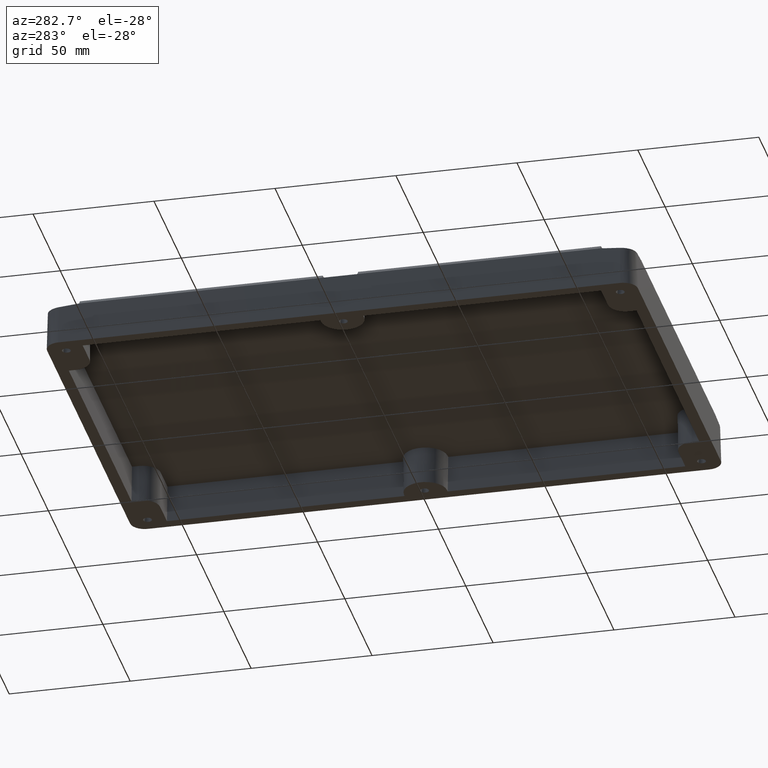
[diagram: clean part render]
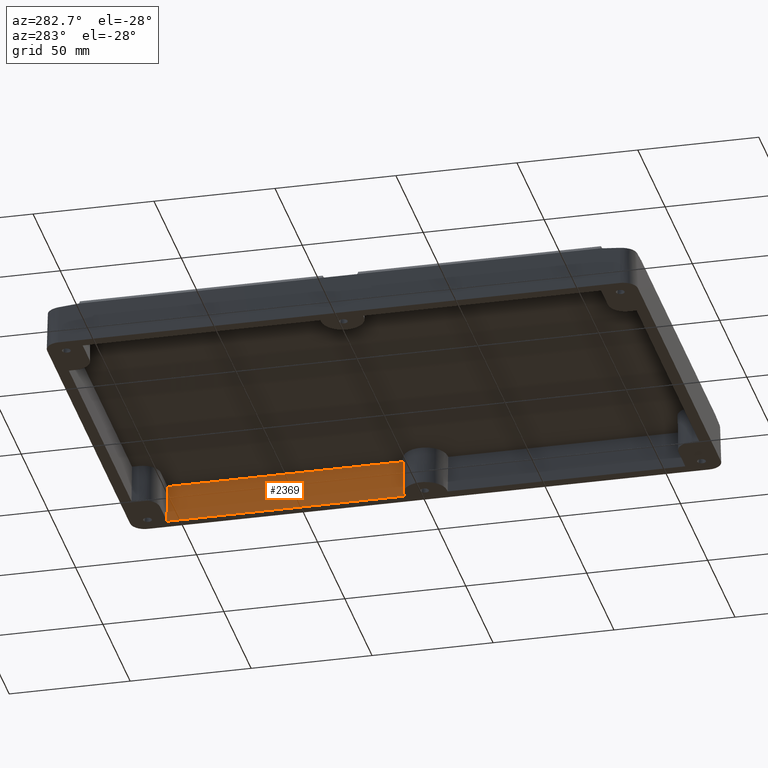
[diagram: same view with one face highlighted and labeled with its STEP entity id]
A machine part, auxiliary view. The second image highlights one B-rep face of the part: STEP entity #2369.
In plain terms, the highlighted planar face has unit normal (0.9998, -0, 0.0175).
Its self-contained STEP definition (entity closure, byte-faithful):
#94 = VERTEX_POINT ( 'NONE', #6098 ) ;
#172 = VERTEX_POINT ( 'NONE', #5270 ) ;
#196 = LINE ( 'NONE', #1811, #5088 ) ;
#343 = VERTEX_POINT ( 'NONE', #866 ) ;
#384 = DIRECTION ( 'NONE',  ( 0.0000000000000000000, 1.000000000000000000, -0.0000000000000000000 ) ) ;
#474 = VECTOR ( 'NONE', #4956, 1000.000000000000200 ) ;
#634 = VECTOR ( 'NONE', #815, 1000.000000000000200 ) ;
#751 = EDGE_CURVE ( 'NONE', #172, #1144, #5354, .T. ) ;
#815 = DIRECTION ( 'NONE',  ( 0.01744974916068272100, -0.01744974916068272100, -0.9996954598818874600 ) ) ;
#866 = CARTESIAN_POINT ( 'NONE',  ( 77.06279085726336600, 9.172119272736631900, 15.59999999999999800 ) ) ;
#881 = PLANE ( 'NONE',  #1667 ) ;
#1018 = CARTESIAN_POINT ( 'NONE',  ( 77.33508987014356300, 0.0000000000000000000, 0.0000000000000000000 ) ) ;
#1144 = VERTEX_POINT ( 'NONE', #5832 ) ;
#1340 = EDGE_CURVE ( 'NONE', #343, #94, #4398, .T. ) ;
#1359 = ORIENTED_EDGE ( 'NONE', *, *, #2780, .T. ) ;
#1360 = DIRECTION ( 'NONE',  ( 0.01745240643728354600, 0.0000000000000000000, -0.9998476951563911600 ) ) ;
#1476 = LINE ( 'NONE', #1018, #2560 ) ;
#1667 = AXIS2_PLACEMENT_3D ( 'NONE', #6057, #4155, #1360 ) ;
#1811 = CARTESIAN_POINT ( 'NONE',  ( 77.06279085726336600, 8.864910130000000200, 15.59999999999999800 ) ) ;
#2149 = CARTESIAN_POINT ( 'NONE',  ( 77.36999999999999000, 107.1699999999999600, -2.000000000000000000 ) ) ;
#2352 = EDGE_LOOP ( 'NONE', ( #3650, #1359, #6129, #3079 ) ) ;
#2369 = ADVANCED_FACE ( 'NONE', ( #2425 ), #881, .F. ) ;
#2425 = FACE_OUTER_BOUND ( 'NONE', #2352, .T. ) ;
#2560 = VECTOR ( 'NONE', #5269, 1000.000000000000000 ) ;
#2780 = EDGE_CURVE ( 'NONE', #343, #172, #196, .T. ) ;
#3079 = ORIENTED_EDGE ( 'NONE', *, *, #3172, .F. ) ;
#3172 = EDGE_CURVE ( 'NONE', #94, #1144, #1476, .T. ) ;
#3625 = CARTESIAN_POINT ( 'NONE',  ( 77.36999999999999000, 8.864910130000000200, -2.000000000000000000 ) ) ;
#3650 = ORIENTED_EDGE ( 'NONE', *, *, #1340, .F. ) ;
#4155 = DIRECTION ( 'NONE',  ( 0.9998476951563912700, -0.0000000000000000000, 0.01745240643728355000 ) ) ;
#4398 = LINE ( 'NONE', #3625, #634 ) ;
#4956 = DIRECTION ( 'NONE',  ( 0.01744974916068272100, 0.01744974916068272100, -0.9996954598818874600 ) ) ;
#5088 = VECTOR ( 'NONE', #384, 1000.000000000000000 ) ;
#5269 = DIRECTION ( 'NONE',  ( -0.0000000000000000000, 1.000000000000000000, -0.0000000000000000000 ) ) ;
#5270 = CARTESIAN_POINT ( 'NONE',  ( 77.06279085726336600, 106.8627908572633300, 15.59999999999999800 ) ) ;
#5354 = LINE ( 'NONE', #2149, #474 ) ;
#5832 = CARTESIAN_POINT ( 'NONE',  ( 77.33508987014356300, 107.1350898701435300, -2.168404344971008900E-016 ) ) ;
#6057 = CARTESIAN_POINT ( 'NONE',  ( 77.36999999999999000, 8.864910130000000200, -2.000000000000000000 ) ) ;
#6098 = CARTESIAN_POINT ( 'NONE',  ( 77.33508987014356300, 8.899820259856435100, -2.168404344971008900E-016 ) ) ;
#6129 = ORIENTED_EDGE ( 'NONE', *, *, #751, .T. ) ;